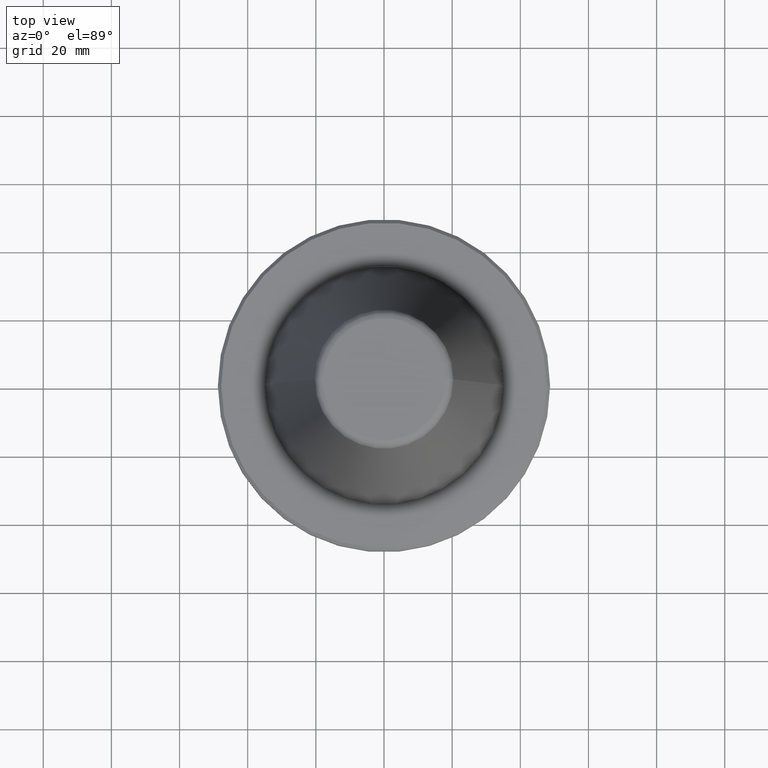
[diagram: clean part render]
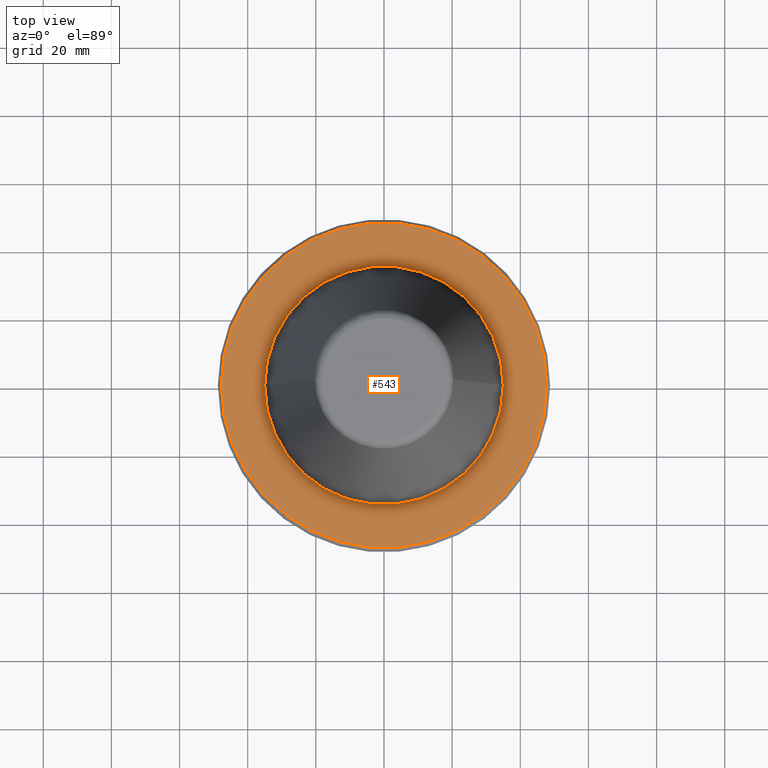
[diagram: same view with one face highlighted and labeled with its STEP entity id]
A machine part, top view. The second image highlights one B-rep face of the part: STEP entity #543.
In plain terms, the highlighted planar face has unit normal (0, 0, -1).
Its self-contained STEP definition (entity closure, byte-faithful):
#8 = ORIENTED_EDGE ( 'NONE', *, *, #474, .F. ) ;
#70 = DIRECTION ( 'NONE',  ( 1.000000000000000000, 0.0000000000000000000, 0.0000000000000000000 ) ) ;
#80 = PLANE ( 'NONE',  #912 ) ;
#105 = ORIENTED_EDGE ( 'NONE', *, *, #724, .F. ) ;
#143 = DIRECTION ( 'NONE',  ( -0.0000000000000000000, -0.0000000000000000000, 1.000000000000000000 ) ) ;
#174 = CARTESIAN_POINT ( 'NONE',  ( -34.99999999999992200, 4.286263797015727000E-015, -3.199999999999966900 ) ) ;
#177 = CARTESIAN_POINT ( 'NONE',  ( 0.0000000000000000000, 0.0000000000000000000, -3.199999999999869600 ) ) ;
#197 = ORIENTED_EDGE ( 'NONE', *, *, #231, .T. ) ;
#231 = EDGE_CURVE ( 'NONE', #512, #483, #656, .T. ) ;
#232 = CARTESIAN_POINT ( 'NONE',  ( 34.99999999999992200, 0.0000000000000000000, -3.199999999999966900 ) ) ;
#247 = CARTESIAN_POINT ( 'NONE',  ( 0.0000000000000000000, 0.0000000000000000000, -3.199999999999869600 ) ) ;
#322 = CARTESIAN_POINT ( 'NONE',  ( 0.0000000000000000000, 0.0000000000000000000, -3.199999999999869600 ) ) ;
#334 = DIRECTION ( 'NONE',  ( -0.0000000000000000000, -0.0000000000000000000, 1.000000000000000000 ) ) ;
#398 = DIRECTION ( 'NONE',  ( -1.000000000000000000, 0.0000000000000000000, -0.0000000000000000000 ) ) ;
#448 = VERTEX_POINT ( 'NONE', #174 ) ;
#470 = FACE_OUTER_BOUND ( 'NONE', #800, .T. ) ;
#474 = EDGE_CURVE ( 'NONE', #448, #757, #905, .T. ) ;
#476 = AXIS2_PLACEMENT_3D ( 'NONE', #177, #639, #495 ) ;
#483 = VERTEX_POINT ( 'NONE', #564 ) ;
#495 = DIRECTION ( 'NONE',  ( 1.000000000000000000, 0.0000000000000000000, 0.0000000000000000000 ) ) ;
#498 = AXIS2_PLACEMENT_3D ( 'NONE', #247, #334, #792 ) ;
#512 = VERTEX_POINT ( 'NONE', #560 ) ;
#526 = ORIENTED_EDGE ( 'NONE', *, *, #756, .T. ) ;
#543 = ADVANCED_FACE ( 'NONE', ( #653, #470 ), #80, .F. ) ;
#560 = CARTESIAN_POINT ( 'NONE',  ( 47.74999999999995700, 5.908920805885974100E-015, -3.199999999999869600 ) ) ;
#564 = CARTESIAN_POINT ( 'NONE',  ( -47.74999999999995700, 0.0000000000000000000, -3.199999999999869600 ) ) ;
#565 = AXIS2_PLACEMENT_3D ( 'NONE', #647, #143, #70 ) ;
#619 = DIRECTION ( 'NONE',  ( -0.0000000000000000000, -0.0000000000000000000, 1.000000000000000000 ) ) ;
#632 = CIRCLE ( 'NONE', #476, 34.99999999999992200 ) ;
#639 = DIRECTION ( 'NONE',  ( -0.0000000000000000000, -0.0000000000000000000, 1.000000000000000000 ) ) ;
#647 = CARTESIAN_POINT ( 'NONE',  ( 0.0000000000000000000, 0.0000000000000000000, -3.199999999999869600 ) ) ;
#653 = FACE_BOUND ( 'NONE', #875, .T. ) ;
#656 = CIRCLE ( 'NONE', #565, 47.74999999999995700 ) ;
#682 = AXIS2_PLACEMENT_3D ( 'NONE', #322, #619, #939 ) ;
#724 = EDGE_CURVE ( 'NONE', #757, #448, #632, .T. ) ;
#756 = EDGE_CURVE ( 'NONE', #483, #512, #989, .T. ) ;
#757 = VERTEX_POINT ( 'NONE', #232 ) ;
#775 = CARTESIAN_POINT ( 'NONE',  ( 0.0000000000000000000, 47.74999999999995700, -3.199999999999869600 ) ) ;
#792 = DIRECTION ( 'NONE',  ( 1.000000000000000000, 0.0000000000000000000, 0.0000000000000000000 ) ) ;
#800 = EDGE_LOOP ( 'NONE', ( #526, #197 ) ) ;
#875 = EDGE_LOOP ( 'NONE', ( #105, #8 ) ) ;
#905 = CIRCLE ( 'NONE', #498, 34.99999999999992200 ) ;
#912 = AXIS2_PLACEMENT_3D ( 'NONE', #775, #971, #398 ) ;
#939 = DIRECTION ( 'NONE',  ( 1.000000000000000000, 0.0000000000000000000, 0.0000000000000000000 ) ) ;
#971 = DIRECTION ( 'NONE',  ( 0.0000000000000000000, 0.0000000000000000000, -1.000000000000000000 ) ) ;
#989 = CIRCLE ( 'NONE', #682, 47.74999999999995700 ) ;